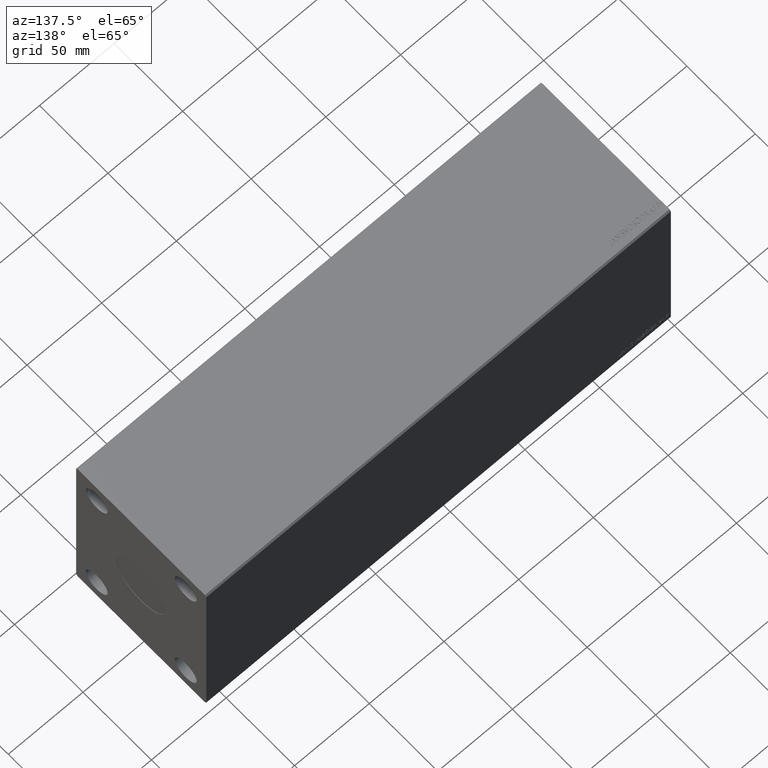
[diagram: clean part render]
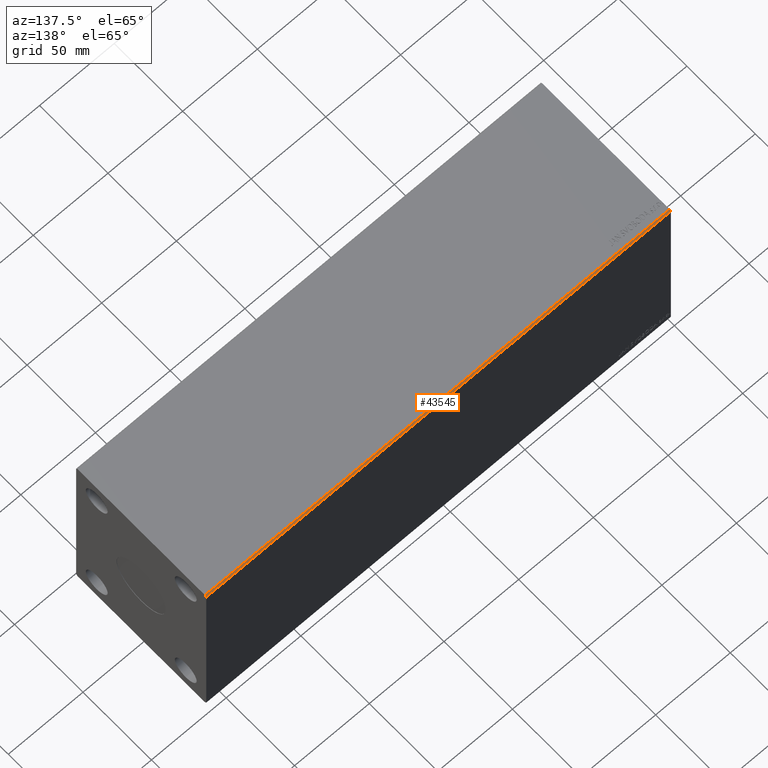
[diagram: same view with one face highlighted and labeled with its STEP entity id]
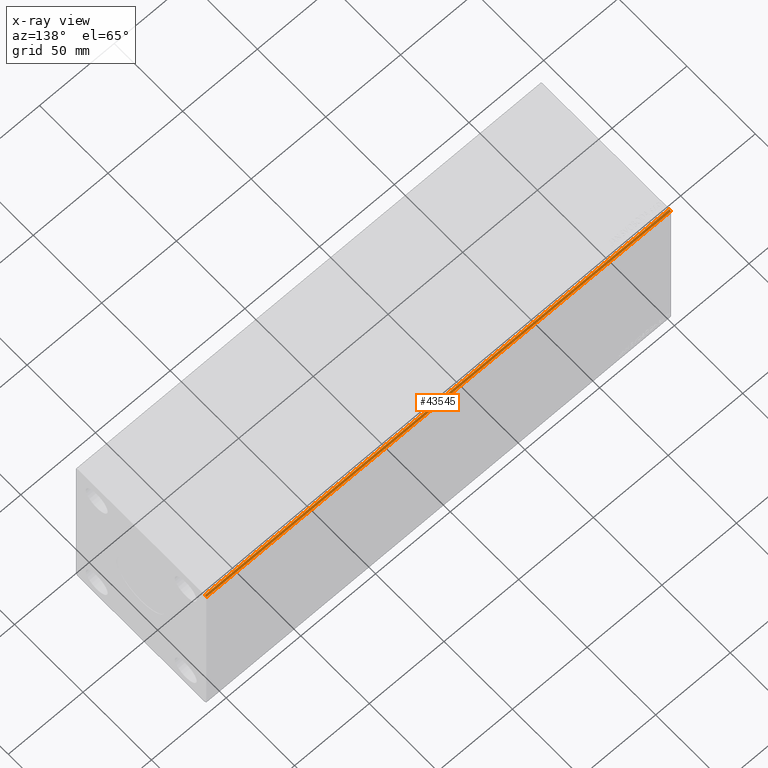
[diagram: x-ray of the same camera — body ghosted, the highlighted face saturated]
A machine part, auxiliary view. The second image highlights one B-rep face of the part: STEP entity #43545.
The next image is the same camera in x-ray: the body ghosted, the highlighted face saturated — about 0% of this face is hidden behind the body in this view.
In plain terms, the highlighted planar face has unit normal (0, -0.7071, -0.7071).
Its self-contained STEP definition (entity closure, byte-faithful):
#15 = LINE ( 'NONE', #43616, #12135 ) ;
#1127 = ORIENTED_EDGE ( 'NONE', *, *, #19105, .T. ) ;
#5166 = VERTEX_POINT ( 'NONE', #19050 ) ;
#5468 = DIRECTION ( 'NONE',  ( -1.000000000000000000, -0.000000000000000000, -0.000000000000000000 ) ) ;
#6030 = ORIENTED_EDGE ( 'NONE', *, *, #17454, .F. ) ;
#6413 = VECTOR ( 'NONE', #15653, 1000.000000000000114 ) ;
#8766 = EDGE_CURVE ( 'NONE', #11558, #40214, #11548, .T. ) ;
#10213 = VERTEX_POINT ( 'NONE', #18724 ) ;
#10240 = LINE ( 'NONE', #33811, #6413 ) ;
#11548 = LINE ( 'NONE', #25336, #35413 ) ;
#11554 = FACE_OUTER_BOUND ( 'NONE', #33317, .T. ) ;
#11558 = VERTEX_POINT ( 'NONE', #42120 ) ;
#12135 = VECTOR ( 'NONE', #26907, 1000.000000000000000 ) ;
#13974 = CARTESIAN_POINT ( 'NONE',  ( 0.000000000000000000, 46.50000000000000000, 62.49999999999998579 ) ) ;
#15653 = DIRECTION ( 'NONE',  ( 0.000000000000000000, -0.7071067811865474617, 0.7071067811865474617 ) ) ;
#17454 = EDGE_CURVE ( 'NONE', #5166, #10213, #10240, .T. ) ;
#18724 = CARTESIAN_POINT ( 'NONE',  ( 311.0000000000000000, 46.50000000000000000, 62.49999999999998579 ) ) ;
#19050 = CARTESIAN_POINT ( 'NONE',  ( 311.0000000000000000, 47.50000000000000000, 61.49999999999998579 ) ) ;
#19105 = EDGE_CURVE ( 'NONE', #5166, #11558, #15, .T. ) ;
#19572 = VECTOR ( 'NONE', #5468, 1000.000000000000000 ) ;
#20348 = AXIS2_PLACEMENT_3D ( 'NONE', #25115, #28659, #35776 ) ;
#22580 = CARTESIAN_POINT ( 'NONE',  ( 311.0000000000000000, 46.50000000000000000, 62.49999999999998579 ) ) ;
#24160 = ORIENTED_EDGE ( 'NONE', *, *, #8766, .T. ) ;
#25115 = CARTESIAN_POINT ( 'NONE',  ( 311.0000000000000000, 47.50000000000000000, 61.49999999999998579 ) ) ;
#25336 = CARTESIAN_POINT ( 'NONE',  ( 0.000000000000000000, 47.50000000000000000, 61.49999999999998579 ) ) ;
#26907 = DIRECTION ( 'NONE',  ( -1.000000000000000000, -0.000000000000000000, -0.000000000000000000 ) ) ;
#28659 = DIRECTION ( 'NONE',  ( 0.000000000000000000, -0.7071067811865475727, -0.7071067811865475727 ) ) ;
#29318 = PLANE ( 'NONE',  #20348 ) ;
#33317 = EDGE_LOOP ( 'NONE', ( #24160, #43831, #6030, #1127 ) ) ;
#33811 = CARTESIAN_POINT ( 'NONE',  ( 311.0000000000000000, 47.50000000000000000, 61.49999999999998579 ) ) ;
#34692 = DIRECTION ( 'NONE',  ( 0.000000000000000000, -0.7071067811865474617, 0.7071067811865474617 ) ) ;
#35413 = VECTOR ( 'NONE', #34692, 1000.000000000000114 ) ;
#35776 = DIRECTION ( 'NONE',  ( 0.000000000000000000, 0.7071067811865474617, -0.7071067811865474617 ) ) ;
#39918 = LINE ( 'NONE', #22580, #19572 ) ;
#40214 = VERTEX_POINT ( 'NONE', #13974 ) ;
#41963 = EDGE_CURVE ( 'NONE', #10213, #40214, #39918, .T. ) ;
#42120 = CARTESIAN_POINT ( 'NONE',  ( 0.000000000000000000, 47.50000000000000000, 61.49999999999998579 ) ) ;
#43545 = ADVANCED_FACE ( 'NONE', ( #11554 ), #29318, .F. ) ;
#43616 = CARTESIAN_POINT ( 'NONE',  ( 311.0000000000000000, 47.50000000000000000, 61.49999999999998579 ) ) ;
#43831 = ORIENTED_EDGE ( 'NONE', *, *, #41963, .F. ) ;